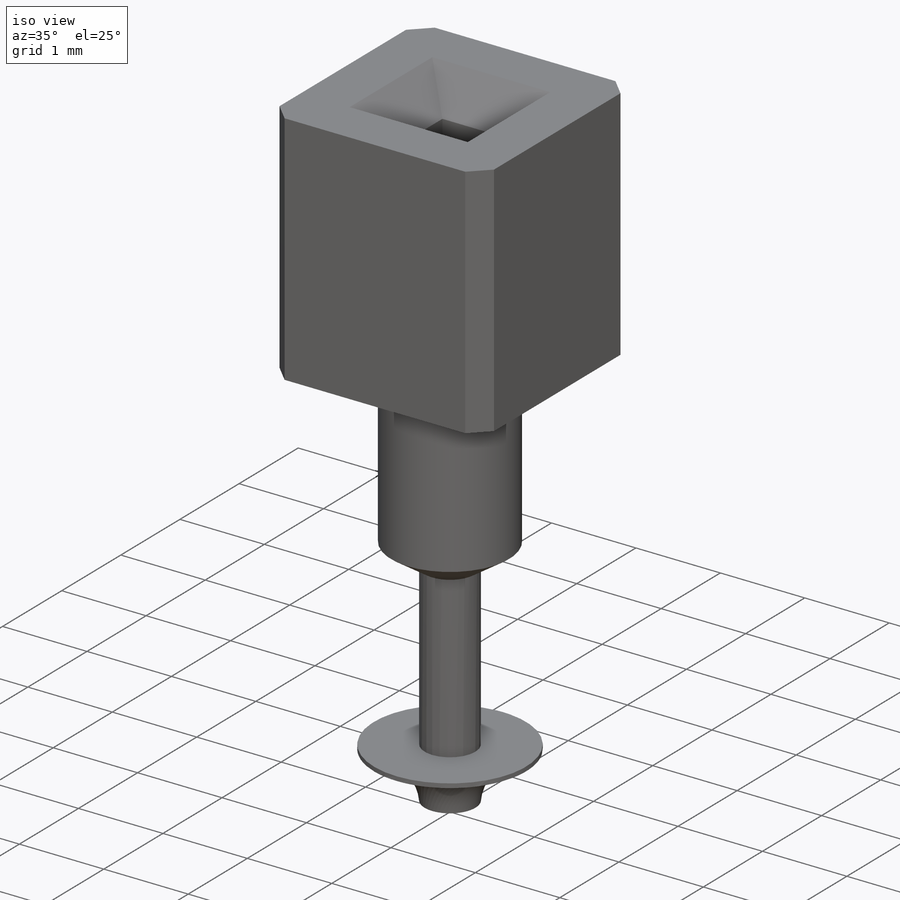
[diagram: iso view]
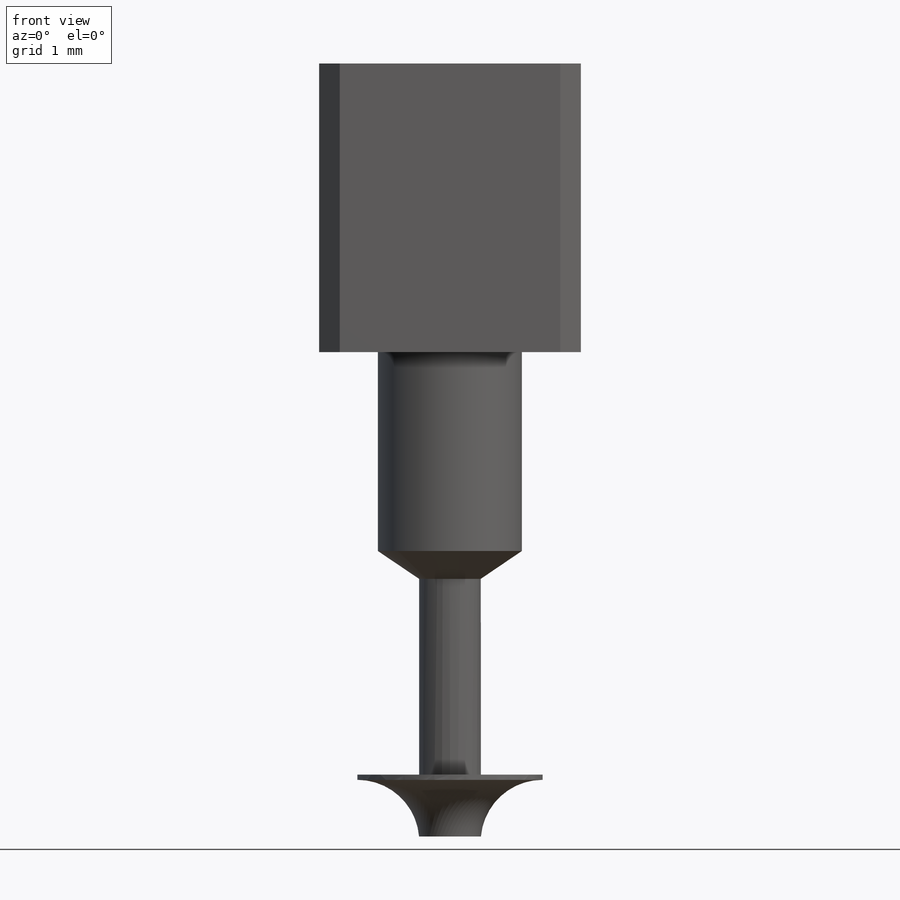
[diagram: front view]
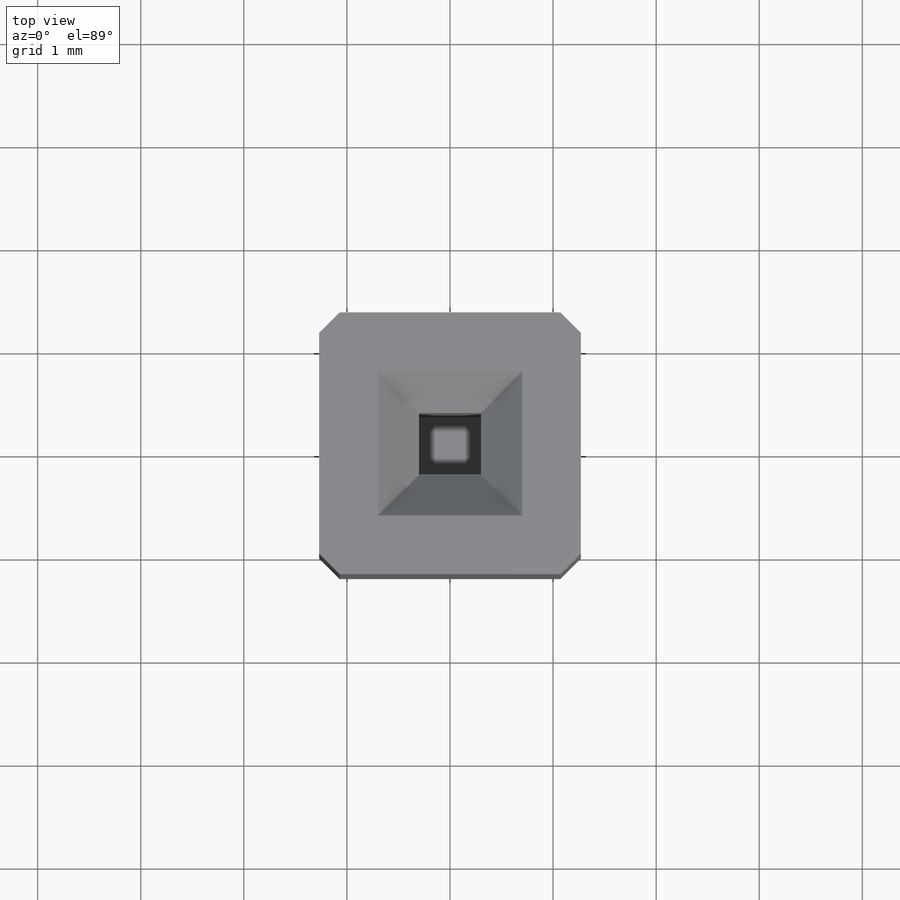
[diagram: top view]
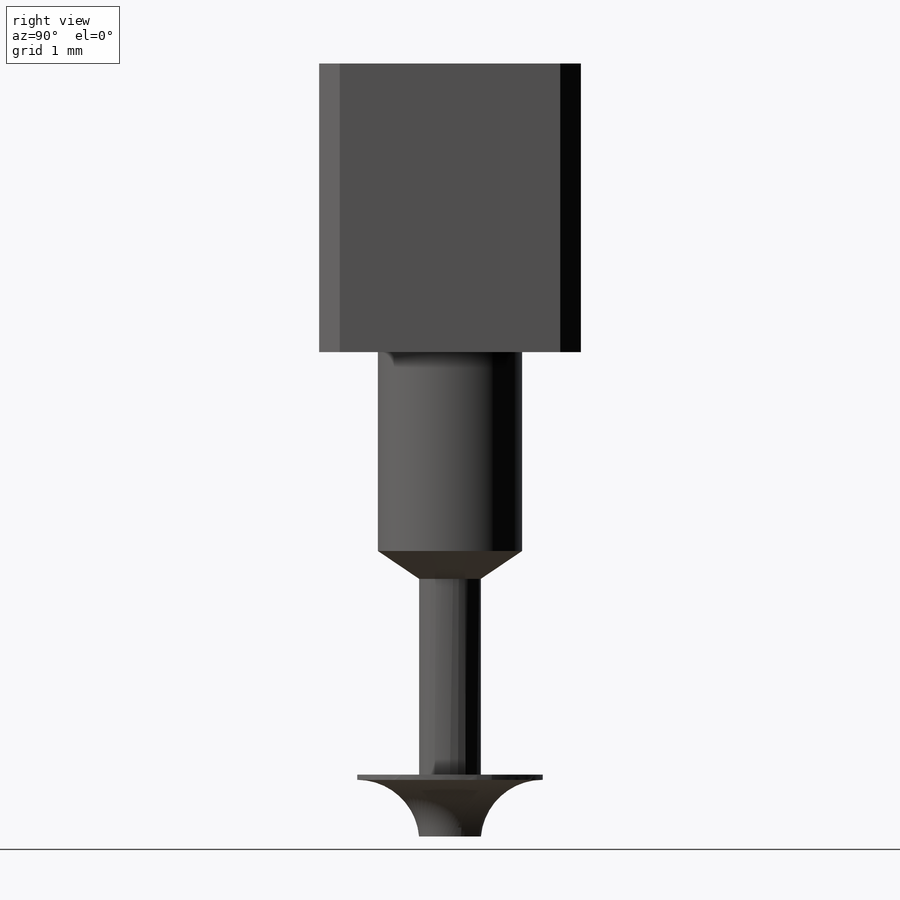
[diagram: right view]
SOLIDWORKS PART (.sldprt)
format: sldprt  version: not decoded by parser v0  size: 208,896 bytes
history: native  units: mm
features: plane x4, sketch x3, extrude x2, material x1, revolve x1, chamfer x1, fillet x1 (+8 scaffold rows collapsed)
feature tree (21):
  scaffold x8  (default folders/planes/origin — collapsed)
  material  "Matériau <non spécifié>"
  plane  "Plan de face"
  plane  "Plan de dessus"
  plane  "Plan de droite"
  sketch  "Esquisse1"  dims[c1.D1=6.8846mm c1.D2=~8.032033mm c2.D1=2.54mm c2.D2=~0.891377mm c2.D3=~0.891377mm c3.D2=0.6mm]
  extrude  "Boss.-Extru.1"  Depth=2.8mm
  sketch  "Esquisse5"  dims[D1=7.5mm D2=5.0mm D3=0.6mm D4=1.4mm]
  revolve  "Révolution1"  Angle=360deg
  chamfer  "Chanfrein1"  Distance=0.4mm Angle=45deg
  plane  "Plan1"  Offset=4.1mm
  sketch  "Esquisse4"  dims[D1=~0.901769mm]
  extrude  "Boss.-Extru.3"  Depth=0.05mm
  fillet  "Congé1"  Radius=0.6mm
decode coverage: 8 of 8 modeling features carry decoded parameters
note: ~ marks probable driven/reference dimensions
note: suppression state not decoded; provenance and decode notes live in map.json
